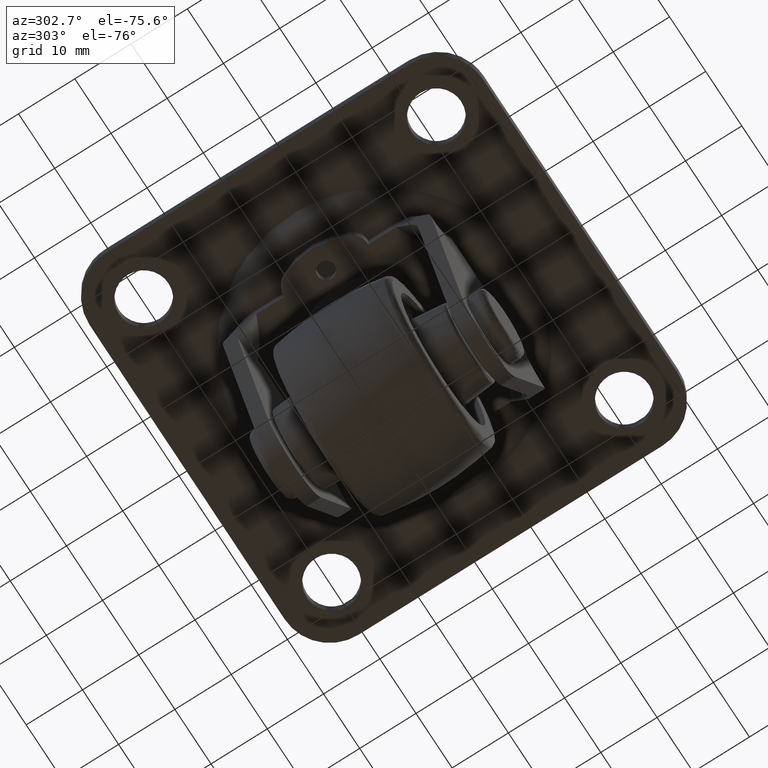
[diagram: clean part render]
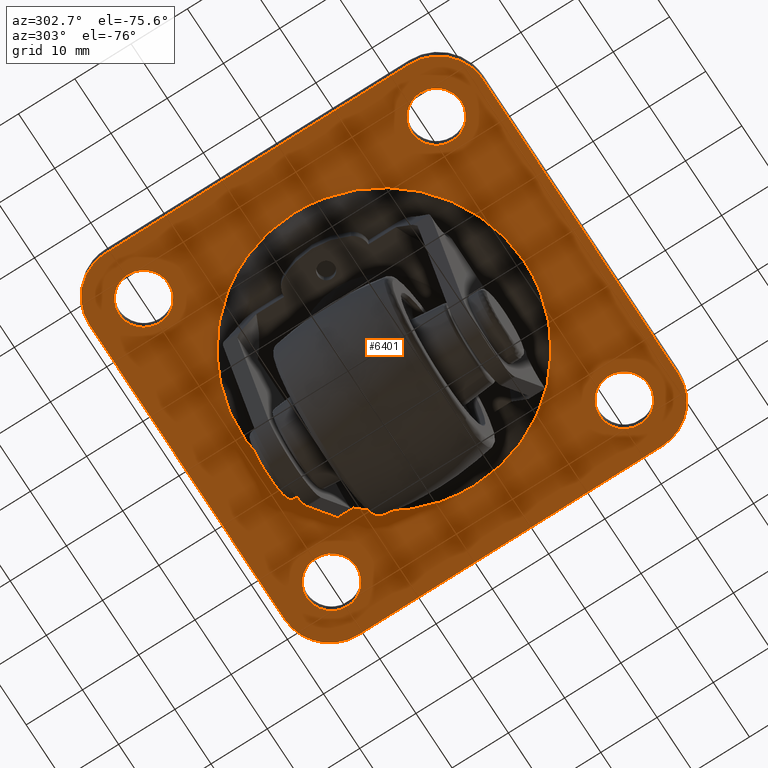
[diagram: same view with one face highlighted and labeled with its STEP entity id]
A machine part, auxiliary view. The second image highlights one B-rep face of the part: STEP entity #6401.
In plain terms, the highlighted face is a freeform B-spline surface patch.
Its self-contained STEP definition (entity closure, byte-faithful):
#2556=CARTESIAN_POINT('',(-28.841267032505819,29.359649014480599,27.999999999997691));
#2557=VERTEX_POINT('',#2556);
#2558=CARTESIAN_POINT('',(-30.400001999999901,26.000003999999951,28.0));
#2559=VERTEX_POINT('',#2558);
#2560=CARTESIAN_POINT('',(-28.841267032505819,29.359649014480599,27.999999999997691));
#2561=CARTESIAN_POINT('',(-29.160647487282048,29.089779363167001,27.999999999997929));
#2562=CARTESIAN_POINT('',(-29.641248372533909,28.548238815516932,27.999999999998209));
#2563=CARTESIAN_POINT('',(-30.058628536552789,27.750191754494779,27.999999999998781));
#2564=CARTESIAN_POINT('',(-30.327624665962659,26.935723256055351,27.999999999999378));
#2565=CARTESIAN_POINT('',(-30.400130977289798,26.378313433810352,27.999999999999741));
#2566=CARTESIAN_POINT('',(-30.400001999999901,26.000003999999951,28.0));
#2567=B_SPLINE_CURVE_WITH_KNOTS('',3,(#2560,#2561,#2562,#2563,#2564,#2565,#2566),.UNSPECIFIED.,.F.,.U.,(4,1,1,1,4),(0.000000034156164,1.254344226748673,2.150294158561155,2.687872251061282,3.822756641224073),.UNSPECIFIED.);
#2568=EDGE_CURVE('',#2557,#2559,#2567,.T.);
#2632=CARTESIAN_POINT('',(-22.808354891169650,29.028763994457719,28.000000000005780));
#2633=VERTEX_POINT('',#2632);
#2639=CARTESIAN_POINT('',(-21.600001999999900,26.000003999999951,28.0));
#2640=VERTEX_POINT('',#2639);
#2641=CARTESIAN_POINT('',(-21.600001999999900,26.000003999999951,28.0));
#2642=CARTESIAN_POINT('',(-21.599979171231229,26.260985880451202,28.000000000000480));
#2643=CARTESIAN_POINT('',(-21.648122915822700,26.800347077776880,28.000000000001489));
#2644=CARTESIAN_POINT('',(-21.855326976769589,27.540899556884249,28.000000000002942));
#2645=CARTESIAN_POINT('',(-22.223318388401470,28.312750147070950,28.000000000004359));
#2646=CARTESIAN_POINT('',(-22.568751764203959,28.776404745841500,28.000000000005372));
#2647=CARTESIAN_POINT('',(-22.808354891169650,29.028763994457719,28.000000000005780));
#2648=B_SPLINE_CURVE_WITH_KNOTS('',3,(#2641,#2642,#2643,#2644,#2645,#2646,#2647),.UNSPECIFIED.,.F.,.U.,(4,1,1,1,4),(0.000000026100124,0.782947415713150,1.618109804161864,2.296643794143854,3.340579689188592),.UNSPECIFIED.);
#2649=EDGE_CURVE('',#2640,#2633,#2648,.T.);
#2651=CARTESIAN_POINT('',(-26.000001258680520,21.600004000000009,28.0));
#2652=VERTEX_POINT('',#2651);
#2653=CARTESIAN_POINT('',(-26.000001258680520,21.600004000000009,28.0));
#2654=CARTESIAN_POINT('',(-25.513981607719490,21.599676132460729,28.000000000000039));
#2655=CARTESIAN_POINT('',(-24.866236529303091,21.708445163285109,27.999999999999901));
#2656=CARTESIAN_POINT('',(-24.031453584777150,22.048347891546129,28.000000000000210));
#2657=CARTESIAN_POINT('',(-23.360246218419359,22.439405981205180,27.999999999999570));
#2658=CARTESIAN_POINT('',(-22.769067281418280,22.975262308271500,28.000000000000039));
#2659=CARTESIAN_POINT('',(-22.244960404697309,23.664134029740580,28.000000000000050));
#2660=CARTESIAN_POINT('',(-21.877983269681970,24.371380054558649,28.000000000000028));
#2661=CARTESIAN_POINT('',(-21.646499237960640,25.208065273443012,27.999999999999961));
#2662=CARTESIAN_POINT('',(-21.599984098736421,25.748024766990049,28.000000000000171));
#2663=CARTESIAN_POINT('',(-21.600001999999900,26.000003999999951,28.0));
#2664=B_SPLINE_CURVE_WITH_KNOTS('',3,(#2653,#2654,#2655,#2656,#2657,#2658,#2659,#2660,#2661,#2662,#2663),.UNSPECIFIED.,.F.,.U.,(4,1,1,1,1,1,1,1,4),(0.000000111420440,1.457900054858151,1.943873412368926,2.699831365257624,3.779742259679956,4.319698509866557,5.291654649168562,6.155602382565927,6.911546786835413),.UNSPECIFIED.);
#2665=EDGE_CURVE('',#2652,#2640,#2664,.T.);
#2667=CARTESIAN_POINT('',(-30.400001999999901,26.000003999999951,28.0));
#2668=CARTESIAN_POINT('',(-30.400050691602470,25.676030466832589,27.999999999999972));
#2669=CARTESIAN_POINT('',(-30.328136302725689,25.028091926388100,28.000000000000039));
#2670=CARTESIAN_POINT('',(-30.045373073217320,24.206151613350240,28.0));
#2671=CARTESIAN_POINT('',(-29.645010954125180,23.499529965961461,27.999999999999979));
#2672=CARTESIAN_POINT('',(-29.087459870036831,22.811342194139801,27.999999999999979));
#2673=CARTESIAN_POINT('',(-28.299910041129170,22.196800721777279,27.999999999999979));
#2674=CARTESIAN_POINT('',(-27.223807190236609,21.719778590141740,28.000000000000071));
#2675=CARTESIAN_POINT('',(-26.449988296025762,21.599810189478170,27.999999999999869));
#2676=CARTESIAN_POINT('',(-26.000001258680520,21.600004000000009,28.0));
#2677=B_SPLINE_CURVE_WITH_KNOTS('',3,(#2667,#2668,#2669,#2670,#2671,#2672,#2673,#2674,#2675,#2676),.UNSPECIFIED.,.F.,.U.,(4,1,1,1,1,1,1,4),(0.000000111157217,0.971919053590192,1.943873647264597,2.591849458033646,3.401810717512845,4.589685566251467,5.561638320274771,6.911547622480364),.UNSPECIFIED.);
#2678=EDGE_CURVE('',#2559,#2652,#2677,.T.);
#2697=CARTESIAN_POINT('',(-26.000002741319310,30.400003999999889,28.0));
#2698=VERTEX_POINT('',#2697);
#2699=CARTESIAN_POINT('',(-26.000002741319310,30.400003999999889,28.0));
#2700=CARTESIAN_POINT('',(-26.402206981548709,30.400136240818721,27.999999999999751));
#2701=CARTESIAN_POINT('',(-26.997353839245228,30.317809008420479,27.999999999999140));
#2702=CARTESIAN_POINT('',(-27.970120305512118,29.973648517119820,27.999999999998359));
#2703=CARTESIAN_POINT('',(-28.509721626415089,29.640319120413189,27.999999999998010));
#2704=CARTESIAN_POINT('',(-28.841267032505819,29.359649014480599,27.999999999997691));
#2705=B_SPLINE_CURVE_WITH_KNOTS('',3,(#2699,#2700,#2701,#2702,#2703,#2704),.UNSPECIFIED.,.F.,.U.,(4,1,1,4),(0.000000020010170,1.206566754220849,1.785706545306547,3.088791432510216),.UNSPECIFIED.);
#2706=EDGE_CURVE('',#2698,#2557,#2705,.T.);
#2708=CARTESIAN_POINT('',(-22.808354891169650,29.028763994457719,28.000000000005780));
#2709=CARTESIAN_POINT('',(-23.153801346258479,29.393290895067029,28.000000000005109));
#2710=CARTESIAN_POINT('',(-23.850241616807040,29.911531707800599,28.000000000004089));
#2711=CARTESIAN_POINT('',(-24.977100771650839,30.321095087337280,28.000000000001592));
#2712=CARTESIAN_POINT('',(-25.665222570707691,30.400067867150199,28.000000000000711));
#2713=CARTESIAN_POINT('',(-26.000002741319310,30.400003999999889,28.0));
#2714=B_SPLINE_CURVE_WITH_KNOTS('',3,(#2708,#2709,#2710,#2711,#2712,#2713),.UNSPECIFIED.,.F.,.U.,(4,1,1,4),(0.000000032009114,1.506513945558012,2.566632060260062,3.570968255924893),.UNSPECIFIED.);
#2715=EDGE_CURVE('',#2633,#2698,#2714,.T.);
#2769=CARTESIAN_POINT('',(23.158734967494080,29.359649014480599,27.999999999997691));
#2770=VERTEX_POINT('',#2769);
#2771=CARTESIAN_POINT('',(21.600000000000001,26.000003999999951,28.0));
#2772=VERTEX_POINT('',#2771);
#2773=CARTESIAN_POINT('',(23.158734967494080,29.359649014480599,27.999999999997691));
#2774=CARTESIAN_POINT('',(22.915467196292159,29.153975739929990,27.999999999997801));
#2775=CARTESIAN_POINT('',(22.432458861868461,28.645958560701921,27.999999999998249));
#2776=CARTESIAN_POINT('',(21.951407267413860,27.810991496382361,27.999999999998700));
#2777=CARTESIAN_POINT('',(21.663000718180552,26.895932966394369,27.999999999999499));
#2778=CARTESIAN_POINT('',(21.599943178732389,26.318568173924000,27.999999999999631));
#2779=CARTESIAN_POINT('',(21.600000000000001,26.000003999999951,28.0));
#2780=B_SPLINE_CURVE_WITH_KNOTS('',3,(#2773,#2774,#2775,#2776,#2777,#2778,#2779),.UNSPECIFIED.,.F.,.U.,(4,1,1,1,4),(0.000000034156583,0.955689185929534,2.090560584850214,2.867067489463386,3.822756641224021),.UNSPECIFIED.);
#2781=EDGE_CURVE('',#2770,#2772,#2780,.T.);
#2844=CARTESIAN_POINT('',(29.191647108830249,29.028763994457719,28.000000000005780));
#2845=VERTEX_POINT('',#2844);
#2851=CARTESIAN_POINT('',(30.399999999999999,26.000003999999951,28.0));
#2852=VERTEX_POINT('',#2851);
#2853=CARTESIAN_POINT('',(30.399999999999999,26.000003999999951,28.0));
#2854=CARTESIAN_POINT('',(30.400028950291951,26.295782245123270,28.000000000000568));
#2855=CARTESIAN_POINT('',(30.334883444969091,26.939534218972991,28.000000000001862));
#2856=CARTESIAN_POINT('',(29.981890154990030,28.003897513424700,28.000000000003709));
#2857=CARTESIAN_POINT('',(29.515231855541678,28.688172645766350,28.000000000005180));
#2858=CARTESIAN_POINT('',(29.191647108830249,29.028763994457719,28.000000000005780));
#2859=B_SPLINE_CURVE_WITH_KNOTS('',3,(#2853,#2854,#2855,#2856,#2857,#2858),.UNSPECIFIED.,.F.,.U.,(4,1,1,4),(0.000000026103681,0.887342468047925,1.931266764220120,3.340579689188588),.UNSPECIFIED.);
#2860=EDGE_CURVE('',#2852,#2845,#2859,.T.);
#2862=CARTESIAN_POINT('',(26.000000741319369,21.600004000000009,28.0));
#2863=VERTEX_POINT('',#2862);
#2864=CARTESIAN_POINT('',(26.000000741319369,21.600004000000009,28.0));
#2865=CARTESIAN_POINT('',(26.377980587513921,21.599906329362060,27.999999999999989));
#2866=CARTESIAN_POINT('',(26.953877752224169,21.674682563145069,28.000000000000011));
#2867=CARTESIAN_POINT('',(27.808602202760429,21.962897168235120,27.999999999999961));
#2868=CARTESIAN_POINT('',(28.570135259367280,22.381938452753630,28.000000000000011));
#2869=CARTESIAN_POINT('',(29.231643987185830,22.974258959587878,28.000000000000071));
#2870=CARTESIAN_POINT('',(29.789023783850269,23.706749074825360,27.999999999999869));
#2871=CARTESIAN_POINT('',(30.258397558504729,24.668254525718719,28.000000000000171));
#2872=CARTESIAN_POINT('',(30.400277965970439,25.514010505931552,27.999999999999929));
#2873=CARTESIAN_POINT('',(30.399999999999999,26.000003999999951,28.0));
#2874=B_SPLINE_CURVE_WITH_KNOTS('',3,(#2864,#2865,#2866,#2867,#2868,#2869,#2870,#2871,#2872,#2873),.UNSPECIFIED.,.F.,.U.,(4,1,1,1,1,1,1,4),(0.000000111424333,1.133912291618414,1.727887052374907,2.699831365259740,3.725730080052250,4.373712036221907,5.453647989715772,6.911546786835373),.UNSPECIFIED.);
#2875=EDGE_CURVE('',#2863,#2852,#2874,.T.);
#2877=CARTESIAN_POINT('',(21.600000000000001,26.000003999999951,28.0));
#2878=CARTESIAN_POINT('',(21.599764492546239,25.549996950166989,28.000000000000089));
#2879=CARTESIAN_POINT('',(21.700303802879169,24.902208282921880,28.0));
#2880=CARTESIAN_POINT('',(22.056500459046820,23.995480957363910,27.999999999999961));
#2881=CARTESIAN_POINT('',(22.531397130778000,23.224577479520100,28.000000000000160));
#2882=CARTESIAN_POINT('',(23.164073690059261,22.599663296865341,27.999999999999979));
#2883=CARTESIAN_POINT('',(23.868815769909929,22.128857843340182,27.999999999999918));
#2884=CARTESIAN_POINT('',(24.740260556626460,21.729597986926681,28.000000000000089));
#2885=CARTESIAN_POINT('',(25.513990020225108,21.599675720007930,28.000000000000011));
#2886=CARTESIAN_POINT('',(26.000000741319369,21.600004000000009,28.0));
#2887=B_SPLINE_CURVE_WITH_KNOTS('',3,(#2877,#2878,#2879,#2880,#2881,#2882,#2883,#2884,#2885,#2886),.UNSPECIFIED.,.F.,.U.,(4,1,1,1,1,1,1,4),(0.000000111160275,1.349911210772994,1.943873647266636,2.915836410119323,4.049721989359692,4.589685566252046,5.453648649328245,6.911547622480359),.UNSPECIFIED.);
#2888=EDGE_CURVE('',#2772,#2863,#2887,.T.);
#2907=CARTESIAN_POINT('',(25.999999258680589,30.400003999999889,28.0));
#2908=VERTEX_POINT('',#2907);
#2909=CARTESIAN_POINT('',(25.999999258680589,30.400003999999889,28.0));
#2910=CARTESIAN_POINT('',(25.678244756588668,30.400064560233609,27.999999999999780));
#2911=CARTESIAN_POINT('',(25.147400132068920,30.341487972134981,27.999999999999211));
#2912=CARTESIAN_POINT('',(24.158441824254911,30.045733130906122,27.999999999998540));
#2913=CARTESIAN_POINT('',(23.539334443267411,29.682020650582270,27.999999999998089));
#2914=CARTESIAN_POINT('',(23.158734967494080,29.359649014480599,27.999999999997691));
#2915=B_SPLINE_CURVE_WITH_KNOTS('',3,(#2909,#2910,#2911,#2912,#2913,#2914),.UNSPECIFIED.,.F.,.U.,(4,1,1,4),(0.000000020008436,0.965251433889800,1.592643262216280,3.088791432510251),.UNSPECIFIED.);
#2916=EDGE_CURVE('',#2908,#2770,#2915,.T.);
#2918=CARTESIAN_POINT('',(29.191647108830249,29.028763994457719,28.000000000005780));
#2919=CARTESIAN_POINT('',(28.846198544277790,29.393288729734021,28.000000000005208));
#2920=CARTESIAN_POINT('',(28.149762027613459,29.911533568624940,28.000000000003869));
#2921=CARTESIAN_POINT('',(27.022900526248659,30.321094078297811,28.000000000001950));
#2922=CARTESIAN_POINT('',(26.334779637786841,30.400068543162739,28.000000000000529));
#2923=CARTESIAN_POINT('',(25.999999258680589,30.400003999999889,28.0));
#2924=B_SPLINE_CURVE_WITH_KNOTS('',3,(#2918,#2919,#2920,#2921,#2922,#2923),.UNSPECIFIED.,.F.,.U.,(4,1,1,4),(0.000000032007851,1.506513945557572,2.566632060259978,3.570968255924897),.UNSPECIFIED.);
#2925=EDGE_CURVE('',#2845,#2908,#2924,.T.);
#2978=CARTESIAN_POINT('',(23.158734967494080,-22.640354985519352,27.999999999997691));
#2979=VERTEX_POINT('',#2978);
#2980=CARTESIAN_POINT('',(21.600000000000001,-26.0,28.0));
#2981=VERTEX_POINT('',#2980);
#2982=CARTESIAN_POINT('',(23.158734967494080,-22.640354985519352,27.999999999997691));
#2983=CARTESIAN_POINT('',(22.885043137459959,-22.871727427222929,27.999999999997890));
#2984=CARTESIAN_POINT('',(22.408294175748260,-23.387091765553841,27.999999999998160));
#2985=CARTESIAN_POINT('',(21.958977856654670,-24.192165481636099,27.999999999998781));
#2986=CARTESIAN_POINT('',(21.670953694533949,-25.064264294615111,27.999999999999400));
#2987=CARTESIAN_POINT('',(21.599914142376480,-25.641610584823130,27.999999999999829));
#2988=CARTESIAN_POINT('',(21.600000000000001,-26.0,28.0));
#2989=B_SPLINE_CURVE_WITH_KNOTS('',3,(#2982,#2983,#2984,#2985,#2986,#2987,#2988),.UNSPECIFIED.,.F.,.U.,(4,1,1,1,4),(0.000000034155306,1.075150887656575,2.090560584850489,2.747605787728539,3.822756641224042),.UNSPECIFIED.);
#2990=EDGE_CURVE('',#2979,#2981,#2989,.T.);
#3055=CARTESIAN_POINT('',(29.191647108830249,-22.971240005542231,28.000000000005780));
#3056=VERTEX_POINT('',#3055);
#3062=CARTESIAN_POINT('',(30.399999999999999,-26.0,28.0));
#3063=VERTEX_POINT('',#3062);
#3064=CARTESIAN_POINT('',(30.399999999999999,-26.0,28.0));
#3065=CARTESIAN_POINT('',(30.400040468085962,-25.704219115840370,28.000000000000519));
#3066=CARTESIAN_POINT('',(30.345400855877831,-25.164867777338419,28.000000000001631));
#3067=CARTESIAN_POINT('',(30.105148727267320,-24.343807166034772,28.000000000003158));
#3068=CARTESIAN_POINT('',(29.729380043911899,-23.612268618370159,28.000000000004562));
#3069=CARTESIAN_POINT('',(29.371304480566170,-23.160538450767142,28.000000000005450));
#3070=CARTESIAN_POINT('',(29.191647108830249,-22.971240005542231,28.000000000005780));
#3071=B_SPLINE_CURVE_WITH_KNOTS('',3,(#3064,#3065,#3066,#3067,#3068,#3069,#3070),.UNSPECIFIED.,.F.,.U.,(4,1,1,1,4),(0.000000026104928,0.887342468049264,1.618109804163778,2.557632299590565,3.340579689188586),.UNSPECIFIED.);
#3072=EDGE_CURVE('',#3063,#3056,#3071,.T.);
#3074=CARTESIAN_POINT('',(26.000000741319369,-30.399999999999942,28.0));
#3075=VERTEX_POINT('',#3074);
#3076=CARTESIAN_POINT('',(26.000000741319369,-30.399999999999942,28.0));
#3077=CARTESIAN_POINT('',(26.251981343068142,-30.400011960716750,28.000000000000011));
#3078=CARTESIAN_POINT('',(26.827942462398202,-30.350429824864509,28.000000000000028));
#3079=CARTESIAN_POINT('',(27.662780942829180,-30.108360112449141,27.999999999999918));
#3080=CARTESIAN_POINT('',(28.380513753529542,-29.724651456615369,28.000000000000028));
#3081=CARTESIAN_POINT('',(29.037864661953350,-29.218168062860968,28.000000000000050));
#3082=CARTESIAN_POINT('',(29.593851668267991,-28.597116329235892,27.999999999999979));
#3083=CARTESIAN_POINT('',(30.021701493213151,-27.841758936533999,28.000000000000039));
#3084=CARTESIAN_POINT('',(30.320630911475011,-26.989869718316569,27.999999999999961));
#3085=CARTESIAN_POINT('',(30.400111414863272,-26.377982017135050,28.000000000000011));
#3086=CARTESIAN_POINT('',(30.399999999999999,-26.0,28.0));
#3087=B_SPLINE_CURVE_WITH_KNOTS('',3,(#3076,#3077,#3078,#3079,#3080,#3081,#3082,#3083,#3084,#3085,#3086),.UNSPECIFIED.,.F.,.U.,(4,1,1,1,1,1,1,1,4),(0.000000111419836,0.755947005102572,1.727887052372332,2.591849144827187,3.185817340124457,4.211717850148237,5.075665583946159,5.777635221977381,6.911546786835378),.UNSPECIFIED.);
#3088=EDGE_CURVE('',#3075,#3063,#3087,.T.);
#3090=CARTESIAN_POINT('',(21.600000000000001,-26.0,28.0));
#3091=CARTESIAN_POINT('',(21.599806596902528,-26.431993340556250,28.000000000000028));
#3092=CARTESIAN_POINT('',(21.698894220937731,-27.097822447412700,28.000000000000050));
#3093=CARTESIAN_POINT('',(22.035630452343799,-27.954929150584189,27.999999999999929));
#3094=CARTESIAN_POINT('',(22.434971741382419,-28.621227711473811,28.000000000000298));
#3095=CARTESIAN_POINT('',(23.010003442461169,-29.271560882114059,27.999999999999659));
#3096=CARTESIAN_POINT('',(23.824474495565831,-29.875766845686520,28.000000000000188));
#3097=CARTESIAN_POINT('',(24.848112700485188,-30.299701228014019,27.999999999999840));
#3098=CARTESIAN_POINT('',(25.622026715865719,-30.400091606589040,28.000000000000160));
#3099=CARTESIAN_POINT('',(26.000000741319369,-30.399999999999942,28.0));
#3100=B_SPLINE_CURVE_WITH_KNOTS('',3,(#3090,#3091,#3092,#3093,#3094,#3095,#3096,#3097,#3098,#3099),.UNSPECIFIED.,.F.,.U.,(4,1,1,1,1,1,1,4),(0.000000111174036,1.295906391851927,1.997875474052241,2.753843389614616,3.617758377560387,4.589685566256067,5.777635920670091,6.911547622480258),.UNSPECIFIED.);
#3101=EDGE_CURVE('',#2981,#3075,#3100,.T.);
#3120=CARTESIAN_POINT('',(25.999999258680589,-21.600000000000058,28.0));
#3121=VERTEX_POINT('',#3120);
#3122=CARTESIAN_POINT('',(25.999999258680589,-21.600000000000058,28.0));
#3123=CARTESIAN_POINT('',(25.694342953440589,-21.599974351474302,27.999999999999670));
#3124=CARTESIAN_POINT('',(25.018651467114640,-21.670596844739389,27.999999999999289));
#3125=CARTESIAN_POINT('',(24.038418679725151,-22.011392598820301,27.999999999998391));
#3126=CARTESIAN_POINT('',(23.428925021459200,-22.411745125771169,27.999999999997900));
#3127=CARTESIAN_POINT('',(23.158734967494080,-22.640354985519352,27.999999999997691));
#3128=B_SPLINE_CURVE_WITH_KNOTS('',3,(#3122,#3123,#3124,#3125,#3126,#3127),.UNSPECIFIED.,.F.,.U.,(4,1,1,4),(0.000000020004184,0.916985874421302,2.027018019227389,3.088791432510261),.UNSPECIFIED.);
#3129=EDGE_CURVE('',#3121,#2979,#3128,.T.);
#3131=CARTESIAN_POINT('',(29.191647108830249,-22.971240005542231,28.000000000005780));
#3132=CARTESIAN_POINT('',(28.846206093293020,-22.606672662937282,28.000000000005141));
#3133=CARTESIAN_POINT('',(28.240583240557282,-22.156178305979310,28.000000000004100));
#3134=CARTESIAN_POINT('',(27.134393701113741,-21.705671258537748,28.000000000001972));
#3135=CARTESIAN_POINT('',(26.446402953772122,-21.599771654406560,28.000000000000899));
#3136=CARTESIAN_POINT('',(25.999999258680589,-21.600000000000058,28.0));
#3137=B_SPLINE_CURVE_WITH_KNOTS('',3,(#3131,#3132,#3133,#3134,#3135,#3136),.UNSPECIFIED.,.F.,.U.,(4,1,1,4),(0.000000032006690,1.506513945557226,2.231847272272302,3.570968255924899),.UNSPECIFIED.);
#3138=EDGE_CURVE('',#3056,#3121,#3137,.T.);
#3192=CARTESIAN_POINT('',(-28.841267032505829,-22.640354985519352,27.999999999997691));
#3193=VERTEX_POINT('',#3192);
#3194=CARTESIAN_POINT('',(-30.400001999999901,-26.0,28.0));
#3195=VERTEX_POINT('',#3194);
#3196=CARTESIAN_POINT('',(-28.841267032505829,-22.640354985519352,27.999999999997691));
#3197=CARTESIAN_POINT('',(-29.130197447825061,-22.884555578900908,27.999999999997868));
#3198=CARTESIAN_POINT('',(-29.549619267019612,-23.344337224308990,27.999999999998170));
#3199=CARTESIAN_POINT('',(-29.983407597335638,-24.085733810627300,27.999999999998650));
#3200=CARTESIAN_POINT('',(-30.305620718624951,-24.924945023219308,27.999999999999279));
#3201=CARTESIAN_POINT('',(-30.400163425857620,-25.581867032852511,27.999999999999680));
#3202=CARTESIAN_POINT('',(-30.400001999999901,-26.0,28.0));
#3203=B_SPLINE_CURVE_WITH_KNOTS('',3,(#3196,#3197,#3198,#3199,#3200,#3201,#3202),.UNSPECIFIED.,.F.,.U.,(4,1,1,1,4),(0.000000034156562,1.134884424332074,1.851663813982092,2.568412448628608,3.822756641224036),.UNSPECIFIED.);
#3204=EDGE_CURVE('',#3193,#3195,#3203,.T.);
#3267=CARTESIAN_POINT('',(-22.808354891169650,-22.971240005542221,28.000000000005780));
#3268=VERTEX_POINT('',#3267);
#3274=CARTESIAN_POINT('',(-21.600001999999900,-26.0,28.0));
#3275=VERTEX_POINT('',#3274);
#3276=CARTESIAN_POINT('',(-21.600001999999900,-26.0,28.0));
#3277=CARTESIAN_POINT('',(-21.599853313399350,-25.582413846604229,28.000000000000831));
#3278=CARTESIAN_POINT('',(-21.712291559089230,-24.799558943879919,28.000000000002242));
#3279=CARTESIAN_POINT('',(-22.158864491559349,-23.770052126806618,28.000000000004349));
#3280=CARTESIAN_POINT('',(-22.580764891830970,-23.210999885208309,28.000000000005251));
#3281=CARTESIAN_POINT('',(-22.808354891169650,-22.971240005542221,28.000000000005780));
#3282=B_SPLINE_CURVE_WITH_KNOTS('',3,(#3276,#3277,#3278,#3279,#3280,#3281),.UNSPECIFIED.,.F.,.U.,(4,1,1,4),(0.000000026102446,1.252717820784429,2.348843691654823,3.340579689188590),.UNSPECIFIED.);
#3283=EDGE_CURVE('',#3275,#3268,#3282,.T.);
#3285=CARTESIAN_POINT('',(-26.000001258680530,-30.399999999999942,28.0));
#3286=VERTEX_POINT('',#3285);
#3287=CARTESIAN_POINT('',(-26.000001258680530,-30.399999999999942,28.0));
#3288=CARTESIAN_POINT('',(-25.748019249761690,-30.400019880112801,28.000000000000050));
#3289=CARTESIAN_POINT('',(-25.226065811431379,-30.355041129541860,27.999999999999979));
#3290=CARTESIAN_POINT('',(-24.388453676790569,-30.128841945836609,28.000000000000071));
#3291=CARTESIAN_POINT('',(-23.597779482883631,-29.724744273923729,27.999999999999709));
#3292=CARTESIAN_POINT('',(-22.923789723157050,-29.178412815926499,28.000000000000409));
#3293=CARTESIAN_POINT('',(-22.345551146208130,-28.508179800800150,28.0));
#3294=CARTESIAN_POINT('',(-21.890825092101679,-27.682061028275140,27.999999999999829));
#3295=CARTESIAN_POINT('',(-21.644570090293410,-26.791940068492170,28.000000000000369));
#3296=CARTESIAN_POINT('',(-21.599997583589179,-26.233973913924419,27.999999999999851));
#3297=CARTESIAN_POINT('',(-21.600001999999900,-26.0,28.0));
#3298=B_SPLINE_CURVE_WITH_KNOTS('',3,(#3287,#3288,#3289,#3290,#3291,#3292,#3293,#3294,#3295,#3296,#3297),.UNSPECIFIED.,.F.,.U.,(4,1,1,1,1,1,1,1,4),(0.000000111422070,0.755947005104399,1.565893731016743,2.591849144827739,3.401810306853280,4.157704088557550,5.237657406489912,6.209616144466024,6.911546786835373),.UNSPECIFIED.);
#3299=EDGE_CURVE('',#3286,#3275,#3298,.T.);
#3301=CARTESIAN_POINT('',(-30.400001999999901,-26.0,28.0));
#3302=CARTESIAN_POINT('',(-30.400309322861482,-26.485997460446519,28.000000000000060));
#3303=CARTESIAN_POINT('',(-30.258379276830240,-27.331748887952440,27.999999999999901));
#3304=CARTESIAN_POINT('',(-29.789020459453830,-28.293253117338150,28.000000000000139));
#3305=CARTESIAN_POINT('',(-29.297200487521760,-28.939546336813269,27.999999999999869));
#3306=CARTESIAN_POINT('',(-28.803198767093189,-29.415696900309150,28.000000000000149));
#3307=CARTESIAN_POINT('',(-28.136063205203939,-29.879524088521091,27.999999999999851));
#3308=CARTESIAN_POINT('',(-27.205833908420860,-30.285080212973391,28.000000000000160));
#3309=CARTESIAN_POINT('',(-26.431984450247821,-30.400195214270241,27.999999999999812));
#3310=CARTESIAN_POINT('',(-26.000001258680530,-30.399999999999942,28.0));
#3311=B_SPLINE_CURVE_WITH_KNOTS('',3,(#3301,#3302,#3303,#3304,#3305,#3306,#3307,#3308,#3309,#3310),.UNSPECIFIED.,.F.,.U.,(4,1,1,1,1,1,1,4),(0.000000111177346,1.457900230947956,2.537836121962740,3.185817725497899,3.887725920281440,4.589685566256378,5.615642505892311,6.911547622480265),.UNSPECIFIED.);
#3312=EDGE_CURVE('',#3195,#3286,#3311,.T.);
#3331=CARTESIAN_POINT('',(-26.000002741319310,-21.600000000000058,28.0));
#3332=VERTEX_POINT('',#3331);
#3333=CARTESIAN_POINT('',(-26.000002741319310,-21.600000000000058,28.0));
#3334=CARTESIAN_POINT('',(-26.434393788904011,-21.599803767346870,27.999999999999940));
#3335=CARTESIAN_POINT('',(-27.061666085753380,-21.693691704790179,27.999999999998849));
#3336=CARTESIAN_POINT('',(-28.026646581863709,-22.059104882658868,27.999999999998611));
#3337=CARTESIAN_POINT('',(-28.534260801503940,-22.380514777579069,27.999999999997470));
#3338=CARTESIAN_POINT('',(-28.841267032505829,-22.640354985519352,27.999999999997691));
#3339=B_SPLINE_CURVE_WITH_KNOTS('',3,(#3333,#3334,#3335,#3336,#3337,#3338),.UNSPECIFIED.,.F.,.U.,(4,1,1,4),(0.000000020008178,1.303087099201078,1.882227397591704,3.088791432510256),.UNSPECIFIED.);
#3340=EDGE_CURVE('',#3332,#3193,#3339,.T.);
#3342=CARTESIAN_POINT('',(-22.808354891169650,-22.971240005542221,28.000000000005780));
#3343=CARTESIAN_POINT('',(-23.051556066861870,-22.714863210498152,28.000000000005379));
#3344=CARTESIAN_POINT('',(-23.628997796187100,-22.237250039595331,28.000000000004238));
#3345=CARTESIAN_POINT('',(-24.716795360030240,-21.728458992224990,28.000000000002359));
#3346=CARTESIAN_POINT('',(-25.553607820951051,-21.599795594676682,28.000000000000750));
#3347=CARTESIAN_POINT('',(-26.000002741319310,-21.600000000000058,28.0));
#3348=B_SPLINE_CURVE_WITH_KNOTS('',3,(#3342,#3343,#3344,#3345,#3346,#3347),.UNSPECIFIED.,.F.,.U.,(4,1,1,4),(0.000000032008975,1.060135199134014,2.231847272272677,3.570968255924893),.UNSPECIFIED.);
#3349=EDGE_CURVE('',#3268,#3332,#3348,.T.);
#5641=CARTESIAN_POINT('',(17.159148062032131,18.176783223450641,27.999999999995669));
#5642=VERTEX_POINT('',#5641);
#5654=CARTESIAN_POINT('',(24.996635985012151,0.0,28.0));
#5655=VERTEX_POINT('',#5654);
#5656=CARTESIAN_POINT('',(17.159148062032131,18.176783223450641,27.999999999995669));
#5657=CARTESIAN_POINT('',(18.508312355329888,16.903639054502008,27.999999999996419));
#5658=CARTESIAN_POINT('',(20.541703323238639,14.502600520775490,27.999999999997542));
#5659=CARTESIAN_POINT('',(22.741736275645351,10.617241285965511,27.999999999998789));
#5660=CARTESIAN_POINT('',(24.069373926944539,7.083492381348276,27.999999999999499));
#5661=CARTESIAN_POINT('',(24.833168414157800,3.497987271371606,28.000000000000082));
#5662=CARTESIAN_POINT('',(24.996690185423880,1.166000739598208,27.999999999999709));
#5663=CARTESIAN_POINT('',(24.996635985012151,0.0,28.0));
#5664=B_SPLINE_CURVE_WITH_KNOTS('',3,(#5656,#5657,#5658,#5659,#5660,#5661,#5662,#5663),.UNSPECIFIED.,.F.,.U.,(4,1,1,1,1,4),(0.000000012513794,5.565008014440362,9.381015211587203,13.356007427748199,16.854022933545782,20.352022448261241),.UNSPECIFIED.);
#5665=EDGE_CURVE('',#5642,#5655,#5664,.T.);
#5667=CARTESIAN_POINT('',(-0.000000955612543,-24.996635985012130,28.0));
#5668=VERTEX_POINT('',#5667);
#5669=CARTESIAN_POINT('',(24.996635985012151,0.0,28.0));
#5670=CARTESIAN_POINT('',(24.996791125421609,-1.482661307420558,28.000000000000060));
#5671=CARTESIAN_POINT('',(24.791298255293711,-3.783259232777434,27.999999999999918));
#5672=CARTESIAN_POINT('',(24.030874696898760,-7.074949595171963,28.000000000000028));
#5673=CARTESIAN_POINT('',(23.175301219872480,-9.489442675989581,28.000000000000089));
#5674=CARTESIAN_POINT('',(22.008318687933780,-11.937337275680409,27.999999999999950));
#5675=CARTESIAN_POINT('',(20.817470880743439,-13.910390881050910,28.0));
#5676=CARTESIAN_POINT('',(19.225975795149989,-16.042571231730019,27.999999999999751));
#5677=CARTESIAN_POINT('',(17.355938984276030,-18.080613958087959,28.000000000000899));
#5678=CARTESIAN_POINT('',(15.049053559154720,-20.033795366461291,27.999999999999531));
#5679=CARTESIAN_POINT('',(12.697881942662120,-21.583986257912532,28.000000000000369));
#5680=CARTESIAN_POINT('',(10.108028717873371,-22.927728551388860,28.000000000000139));
#5681=CARTESIAN_POINT('',(7.468770918882201,-23.918000200538430,27.999999999999979));
#5682=CARTESIAN_POINT('',(3.987734922251784,-24.767275155118561,27.999999999999670));
#5683=CARTESIAN_POINT('',(1.584916040427036,-24.996841730425970,28.000000000000892));
#5684=CARTESIAN_POINT('',(-0.000000955612543,-24.996635985012130,28.0));
#5685=B_SPLINE_CURVE_WITH_KNOTS('',3,(#5669,#5670,#5671,#5672,#5673,#5674,#5675,#5676,#5677,#5678,#5679,#5680,#5681,#5682,#5683,#5684),.UNSPECIFIED.,.F.,.U.,(4,1,1,1,1,1,1,1,1,1,1,1,1,4),(0.000000040357271,4.447948857073222,6.901993690325071,10.122928016783851,12.116846548908461,15.031017842191140,17.024937373976890,20.092443940845911,23.313383195795289,26.074205175341788,28.528248815105510,32.055946139457077,34.509989868555401,39.264686120884441),.UNSPECIFIED.);
#5686=EDGE_CURVE('',#5655,#5668,#5685,.T.);
#5688=CARTESIAN_POINT('',(-24.996635985012151,0.0,28.0));
#5689=VERTEX_POINT('',#5688);
#5690=CARTESIAN_POINT('',(-0.000000955612543,-24.996635985012130,28.0));
#5691=CARTESIAN_POINT('',(-1.482662350566322,-24.996792135489621,28.000000000000011));
#5692=CARTESIAN_POINT('',(-3.783259545052948,-24.791295397310481,28.000000000000050));
#5693=CARTESIAN_POINT('',(-7.124815767761382,-24.019339297806120,27.999999999999940));
#5694=CARTESIAN_POINT('',(-10.453928766501170,-22.828345890205640,28.000000000000249));
#5695=CARTESIAN_POINT('',(-13.957439218397401,-20.886052975582079,27.999999999999460));
#5696=CARTESIAN_POINT('',(-16.752759135711941,-18.634464888710859,28.000000000000689));
#5697=CARTESIAN_POINT('',(-19.183006182451919,-16.143933420127720,27.999999999999570));
#5698=CARTESIAN_POINT('',(-21.393666622245760,-13.182407957344900,28.000000000000139));
#5699=CARTESIAN_POINT('',(-23.343262284863300,-9.279266687645096,28.000000000000249));
#5700=CARTESIAN_POINT('',(-24.669994658320750,-4.856869510795302,27.999999999999261));
#5701=CARTESIAN_POINT('',(-24.996890817375480,-1.738283071316860,28.000000000000590));
#5702=CARTESIAN_POINT('',(-24.996635985012151,0.0,28.0));
#5703=B_SPLINE_CURVE_WITH_KNOTS('',3,(#5690,#5691,#5692,#5693,#5694,#5695,#5696,#5697,#5698,#5699,#5700,#5701,#5702),.UNSPECIFIED.,.F.,.U.,(4,1,1,1,1,1,1,1,1,1,4),(0.000000040376200,4.447948735130929,6.901993500935504,10.276306635467350,15.031017429621700,18.865468822800789,21.012737108091589,25.460694079033122,29.908648173563979,34.049863015565322,39.264685043684892),.UNSPECIFIED.);
#5704=EDGE_CURVE('',#5668,#5689,#5703,.T.);
#5706=CARTESIAN_POINT('',(-20.036478138415539,14.945613215110530,27.999999999990699));
#5707=VERTEX_POINT('',#5706);
#5708=CARTESIAN_POINT('',(-24.996635985012151,0.0,28.0));
#5709=CARTESIAN_POINT('',(-24.996737486372002,1.460155948090263,28.000000000000071));
#5710=CARTESIAN_POINT('',(-24.732781282780490,4.463882485767964,27.999999999999371));
#5711=CARTESIAN_POINT('',(-23.634949275294360,8.463844888939372,27.999999999997559));
#5712=CARTESIAN_POINT('',(-22.020449559135020,12.001580237185550,27.999999999994198));
#5713=CARTESIAN_POINT('',(-20.759903695521260,13.975881379602120,27.999999999992259));
#5714=CARTESIAN_POINT('',(-20.036478138415539,14.945613215110530,27.999999999990699));
#5715=B_SPLINE_CURVE_WITH_KNOTS('',3,(#5708,#5709,#5710,#5711,#5712,#5713,#5714),.UNSPECIFIED.,.F.,.U.,(4,1,1,1,4),(7.979994E-009,4.380464850330537,9.011239953745298,12.390456445357520,16.019983320381812),.UNSPECIFIED.);
#5716=EDGE_CURVE('',#5689,#5707,#5715,.T.);
#5826=CARTESIAN_POINT('',(-20.036478138415539,14.945613215110530,27.999999999990699));
#5827=CARTESIAN_POINT('',(-18.986427843247689,16.353794057944231,27.999999999991910));
#5828=CARTESIAN_POINT('',(-17.187338462872841,18.298748280331530,27.999999999993609));
#5829=CARTESIAN_POINT('',(-14.162683872303690,20.677244355273949,27.999999999995708));
#5830=CARTESIAN_POINT('',(-11.285304658271411,22.406897293550099,27.999999999997360));
#5831=CARTESIAN_POINT('',(-7.776400180810842,23.861535455566859,27.999999999998941));
#5832=CARTESIAN_POINT('',(-4.137754902913081,24.744945227118730,27.999999999999659));
#5833=CARTESIAN_POINT('',(-0.904477072489879,25.036461430758390,27.999999999999691));
#5834=CARTESIAN_POINT('',(2.116835859957044,24.959897192253859,28.000000000000679));
#5835=CARTESIAN_POINT('',(4.841516310861389,24.583313313772940,27.999999999999620));
#5836=CARTESIAN_POINT('',(7.713150632036186,23.831921785768930,27.999999999998369));
#5837=CARTESIAN_POINT('',(10.227286993405500,22.862789125361960,27.999999999999481));
#5838=CARTESIAN_POINT('',(12.571334376563151,21.652499650780211,27.999999999998622));
#5839=CARTESIAN_POINT('',(14.876749794058370,20.157046972748969,27.999999999996131));
#5840=CARTESIAN_POINT('',(16.360863114544451,18.930437631001109,27.999999999997300));
#5841=CARTESIAN_POINT('',(17.159148062032131,18.176783223450641,27.999999999995669));
#5842=B_SPLINE_CURVE_WITH_KNOTS('',3,(#5826,#5827,#5828,#5829,#5830,#5831,#5832,#5833,#5834,#5835,#5836,#5837,#5838,#5839,#5840,#5841),.UNSPECIFIED.,.F.,.U.,(4,1,1,1,1,1,1,1,1,1,1,1,1,4),(0.000000040806533,5.269668316861583,7.904505931604966,11.527408510568289,15.314998725909019,19.267265306360439,22.725423369687359,25.030936420337671,28.324470786146090,30.959316135803419,33.923513927734120,36.393667497454089,38.863850184571270,42.157369485179082),.UNSPECIFIED.);
#5843=EDGE_CURVE('',#5707,#5642,#5842,.T.);
#6042=CARTESIAN_POINT('',(35.0,26.999996999999901,28.0));
#6043=VERTEX_POINT('',#6042);
#6049=CARTESIAN_POINT('',(26.999999581120949,34.999996999999887,28.0));
#6050=VERTEX_POINT('',#6049);
#6051=CARTESIAN_POINT('',(35.0,26.999996999999901,28.0));
#6052=CARTESIAN_POINT('',(35.000084472779157,27.556320275301658,27.999999999999950));
#6053=CARTESIAN_POINT('',(34.897156038930881,28.538026876075570,28.000000000000099));
#6054=CARTESIAN_POINT('',(34.430414599302928,30.111760104458298,27.999999999999869));
#6055=CARTESIAN_POINT('',(33.684408223086599,31.507541011418770,28.000000000000281));
#6056=CARTESIAN_POINT('',(32.746503554433673,32.608142405024921,27.999999999999620));
#6057=CARTESIAN_POINT('',(31.759104811772549,33.470552746134622,28.000000000000391));
#6058=CARTESIAN_POINT('',(30.731210622357921,34.121473342008947,27.999999999999432));
#6059=CARTESIAN_POINT('',(29.609479817069701,34.586047171743687,28.000000000000838));
#6060=CARTESIAN_POINT('',(28.407128990395488,34.910858294734737,27.999999999998700));
#6061=CARTESIAN_POINT('',(27.556328459191260,35.000095812932123,28.000000000001471));
#6062=CARTESIAN_POINT('',(26.999999581120949,34.999996999999887,28.0));
#6063=B_SPLINE_CURVE_WITH_KNOTS('',3,(#6051,#6052,#6053,#6054,#6055,#6056,#6057,#6058,#6059,#6060,#6061,#6062),.UNSPECIFIED.,.F.,.U.,(4,1,1,1,1,1,1,1,1,4),(0.000000056916020,1.668963883472708,2.945259577861185,4.908784060297860,6.381384344184553,7.264956390706460,8.835777498224005,10.013897075705930,10.897483174861589,12.566449699090690),.UNSPECIFIED.);
#6064=EDGE_CURVE('',#6043,#6050,#6063,.T.);
#6086=CARTESIAN_POINT('',(35.0,-26.999999860373649,28.0));
#6087=VERTEX_POINT('',#6086);
#6093=CARTESIAN_POINT('',(35.0,-26.999999860373649,28.0));
#6094=CARTESIAN_POINT('',(35.0,26.999996999999901,28.0));
#6095=QUASI_UNIFORM_CURVE('',1,(#6093,#6094),.UNSPECIFIED.,.F.,.U.);
#6096=EDGE_CURVE('',#6087,#6043,#6095,.T.);
#6133=CARTESIAN_POINT('',(27.0,-35.0,28.0));
#6134=VERTEX_POINT('',#6133);
#6140=CARTESIAN_POINT('',(27.0,-35.0,28.0));
#6141=CARTESIAN_POINT('',(27.359963960946342,-35.000005404667213,28.000000000000021));
#6142=CARTESIAN_POINT('',(28.210817130357821,-34.942516563033493,27.999999999999989));
#6143=CARTESIAN_POINT('',(29.395567395275229,-34.668831999763633,28.000000000000028));
#6144=CARTESIAN_POINT('',(30.701912356433080,-34.137108195547263,27.999999999999950));
#6145=CARTESIAN_POINT('',(31.901868211240490,-33.387556805179592,28.000000000000089));
#6146=CARTESIAN_POINT('',(33.074928848712247,-32.284330760719051,27.999999999999940));
#6147=CARTESIAN_POINT('',(33.973166395819852,-31.025477606752339,28.0));
#6148=CARTESIAN_POINT('',(34.540166465593749,-29.767019464303161,28.0));
#6149=CARTESIAN_POINT('',(34.907436906248812,-28.439855749083652,28.000000000000270));
#6150=CARTESIAN_POINT('',(35.000094457812672,-27.556328045899249,27.999999999999890));
#6151=CARTESIAN_POINT('',(35.0,-26.999999860373649,28.0));
#6152=B_SPLINE_CURVE_WITH_KNOTS('',3,(#6140,#6141,#6142,#6143,#6144,#6145,#6146,#6147,#6148,#6149,#6150,#6151),.UNSPECIFIED.,.F.,.U.,(4,1,1,1,1,1,1,1,1,4),(0.000000056953516,1.079903375982202,2.552553656074307,3.632494976945413,5.301492013661520,6.774070336513016,8.443082800340690,9.915718918725261,10.897483038391581,12.566449541698340),.UNSPECIFIED.);
#6153=EDGE_CURVE('',#6134,#6087,#6152,.T.);
#6171=CARTESIAN_POINT('',(-27.000001860373601,-35.0,28.0));
#6172=VERTEX_POINT('',#6171);
#6178=CARTESIAN_POINT('',(-27.000001860373601,-35.0,28.0));
#6179=CARTESIAN_POINT('',(27.0,-35.0,28.0));
#6180=QUASI_UNIFORM_CURVE('',1,(#6178,#6179),.UNSPECIFIED.,.F.,.U.);
#6181=EDGE_CURVE('',#6172,#6134,#6180,.T.);
#6218=CARTESIAN_POINT('',(-35.000001999999803,-27.0,28.0));
#6219=VERTEX_POINT('',#6218);
#6225=CARTESIAN_POINT('',(-35.000001999999803,-27.0,28.0));
#6226=CARTESIAN_POINT('',(-35.000245371243878,-27.719976390325019,27.999999999999972));
#6227=CARTESIAN_POINT('',(-34.844299876919969,-28.865206783644460,28.000000000000082));
#6228=CARTESIAN_POINT('',(-34.326746398756100,-30.283914571705900,27.999999999999901));
#6229=CARTESIAN_POINT('',(-33.748110788143357,-31.350682208047822,27.999999999999979));
#6230=CARTESIAN_POINT('',(-33.117152092407089,-32.190610876856610,28.000000000000149));
#6231=CARTESIAN_POINT('',(-32.316283938875763,-33.011364460017397,27.999999999999901));
#6232=CARTESIAN_POINT('',(-31.280592022034259,-33.819758571337957,28.000000000000060));
#6233=CARTESIAN_POINT('',(-30.045392070786729,-34.441495685524259,28.0));
#6234=CARTESIAN_POINT('',(-28.570731492560650,-34.888754959400863,28.0));
#6235=CARTESIAN_POINT('',(-27.621786063459329,-35.000151967465648,27.999999999999989));
#6236=CARTESIAN_POINT('',(-27.000001860373601,-35.0,28.0));
#6237=B_SPLINE_CURVE_WITH_KNOTS('',3,(#6225,#6226,#6227,#6228,#6229,#6230,#6231,#6232,#6233,#6234,#6235,#6236),.UNSPECIFIED.,.F.,.U.,(4,1,1,1,1,1,1,1,1,4),(0.000000056957209,2.159854212555100,3.436139070846378,4.516084624388331,5.792379462831462,6.577718037925567,7.952191299333719,9.719364136686673,10.701133720584160,12.566449541698191),.UNSPECIFIED.);
#6238=EDGE_CURVE('',#6219,#6172,#6237,.T.);
#6256=CARTESIAN_POINT('',(-35.000001999999903,26.999996301868201,28.0));
#6257=VERTEX_POINT('',#6256);
#6263=CARTESIAN_POINT('',(-35.000001999999903,26.999996301868201,28.0));
#6264=CARTESIAN_POINT('',(-35.000001999999803,-27.0,28.0));
#6265=QUASI_UNIFORM_CURVE('',1,(#6263,#6264),.UNSPECIFIED.,.F.,.U.);
#6266=EDGE_CURVE('',#6257,#6219,#6265,.T.);
#6302=CARTESIAN_POINT('',(-27.000002418878950,34.999996999999887,28.0));
#6303=VERTEX_POINT('',#6302);
#6309=CARTESIAN_POINT('',(-27.000002418878950,34.999996999999887,28.0));
#6310=CARTESIAN_POINT('',(-27.719971343581410,35.000231059150252,28.0));
#6311=CARTESIAN_POINT('',(-28.930673754076210,34.835412944615577,27.999999999999972));
#6312=CARTESIAN_POINT('',(-30.344390972304129,34.299914666966657,28.000000000000039));
#6313=CARTESIAN_POINT('',(-31.460417502824679,33.676714957541883,28.0));
#6314=CARTESIAN_POINT('',(-32.527764133418387,32.854343122113093,27.999999999999819));
#6315=CARTESIAN_POINT('',(-33.480046211328421,31.763891098481519,28.000000000000480));
#6316=CARTESIAN_POINT('',(-34.239169215083862,30.497346697325700,27.999999999999339));
#6317=CARTESIAN_POINT('',(-34.830997887640258,28.963398342115639,28.000000000000789));
#6318=CARTESIAN_POINT('',(-35.000210579633723,27.719962122086759,27.999999999999620));
#6319=CARTESIAN_POINT('',(-35.000001999999903,26.999996301868201,28.0));
#6320=B_SPLINE_CURVE_WITH_KNOTS('',3,(#6309,#6310,#6311,#6312,#6313,#6314,#6315,#6316,#6317,#6318,#6319),.UNSPECIFIED.,.F.,.U.,(4,1,1,1,1,1,1,1,4),(0.000000056919992,2.159854226044599,3.632494999670273,4.516084652637732,5.988731151748413,7.657667502395834,8.835777442870366,10.406591602659720,12.566449620394559),.UNSPECIFIED.);
#6321=EDGE_CURVE('',#6303,#6257,#6320,.T.);
#6338=CARTESIAN_POINT('',(26.999999581120949,34.999996999999887,28.0));
#6339=CARTESIAN_POINT('',(-27.000002418878950,34.999996999999887,28.0));
#6340=QUASI_UNIFORM_CURVE('',1,(#6338,#6339),.UNSPECIFIED.,.F.,.U.);
#6341=EDGE_CURVE('',#6050,#6303,#6340,.T.);
#6347=CARTESIAN_POINT('',(-38.496503935556113,38.496496057366407,28.0));
#6348=CARTESIAN_POINT('',(38.496501935556203,38.496496057366407,28.0));
#6349=CARTESIAN_POINT('',(-38.496503935556113,-38.496501560761502,28.0));
#6350=CARTESIAN_POINT('',(38.496501935556203,-38.496501560761502,28.0));
#6351=B_SPLINE_SURFACE_WITH_KNOTS('',1,1,((#6347,#6349),(#6348,#6350)),.UNSPECIFIED.,.F.,.F.,.U.,(2,2),(2,2),(0.0,76.993005871112302),(0.0,76.992997618127902),.UNSPECIFIED.);
#6352=ORIENTED_EDGE('',*,*,#6341,.F.);
#6353=ORIENTED_EDGE('',*,*,#6064,.F.);
#6354=ORIENTED_EDGE('',*,*,#6096,.F.);
#6355=ORIENTED_EDGE('',*,*,#6153,.F.);
#6356=ORIENTED_EDGE('',*,*,#6181,.F.);
#6357=ORIENTED_EDGE('',*,*,#6238,.F.);
#6358=ORIENTED_EDGE('',*,*,#6266,.F.);
#6359=ORIENTED_EDGE('',*,*,#6321,.F.);
#6360=EDGE_LOOP('',(#6352,#6353,#6354,#6355,#6356,#6357,#6358,#6359));
#6361=FACE_OUTER_BOUND('',#6360,.T.);
#6362=ORIENTED_EDGE('',*,*,#5716,.F.);
#6363=ORIENTED_EDGE('',*,*,#5704,.F.);
#6364=ORIENTED_EDGE('',*,*,#5686,.F.);
#6365=ORIENTED_EDGE('',*,*,#5665,.F.);
#6366=ORIENTED_EDGE('',*,*,#5843,.F.);
#6367=EDGE_LOOP('',(#6362,#6363,#6364,#6365,#6366));
#6368=FACE_BOUND('',#6367,.T.);
#6369=ORIENTED_EDGE('',*,*,#2888,.T.);
#6370=ORIENTED_EDGE('',*,*,#2875,.T.);
#6371=ORIENTED_EDGE('',*,*,#2860,.T.);
#6372=ORIENTED_EDGE('',*,*,#2925,.T.);
#6373=ORIENTED_EDGE('',*,*,#2916,.T.);
#6374=ORIENTED_EDGE('',*,*,#2781,.T.);
#6375=EDGE_LOOP('',(#6369,#6370,#6371,#6372,#6373,#6374));
#6376=FACE_BOUND('',#6375,.T.);
#6377=ORIENTED_EDGE('',*,*,#3101,.T.);
#6378=ORIENTED_EDGE('',*,*,#3088,.T.);
#6379=ORIENTED_EDGE('',*,*,#3072,.T.);
#6380=ORIENTED_EDGE('',*,*,#3138,.T.);
#6381=ORIENTED_EDGE('',*,*,#3129,.T.);
#6382=ORIENTED_EDGE('',*,*,#2990,.T.);
#6383=EDGE_LOOP('',(#6377,#6378,#6379,#6380,#6381,#6382));
#6384=FACE_BOUND('',#6383,.T.);
#6385=ORIENTED_EDGE('',*,*,#3312,.T.);
#6386=ORIENTED_EDGE('',*,*,#3299,.T.);
#6387=ORIENTED_EDGE('',*,*,#3283,.T.);
#6388=ORIENTED_EDGE('',*,*,#3349,.T.);
#6389=ORIENTED_EDGE('',*,*,#3340,.T.);
#6390=ORIENTED_EDGE('',*,*,#3204,.T.);
#6391=EDGE_LOOP('',(#6385,#6386,#6387,#6388,#6389,#6390));
#6392=FACE_BOUND('',#6391,.T.);
#6393=ORIENTED_EDGE('',*,*,#2678,.T.);
#6394=ORIENTED_EDGE('',*,*,#2665,.T.);
#6395=ORIENTED_EDGE('',*,*,#2649,.T.);
#6396=ORIENTED_EDGE('',*,*,#2715,.T.);
#6397=ORIENTED_EDGE('',*,*,#2706,.T.);
#6398=ORIENTED_EDGE('',*,*,#2568,.T.);
#6399=EDGE_LOOP('',(#6393,#6394,#6395,#6396,#6397,#6398));
#6400=FACE_BOUND('',#6399,.T.);
#6401=ADVANCED_FACE('',(#6361,#6368,#6376,#6384,#6392,#6400),#6351,.T.);